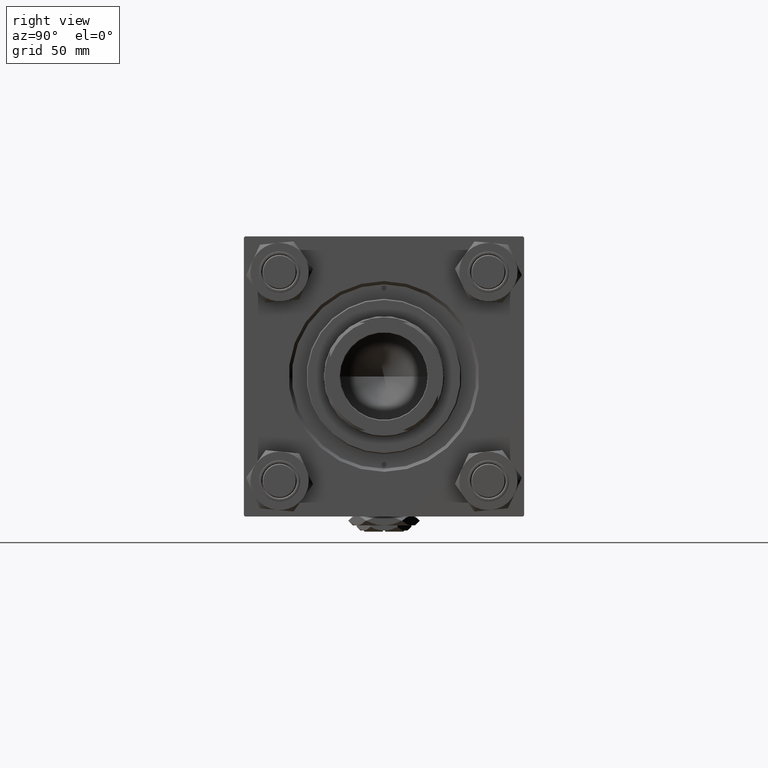
[diagram: clean part render]
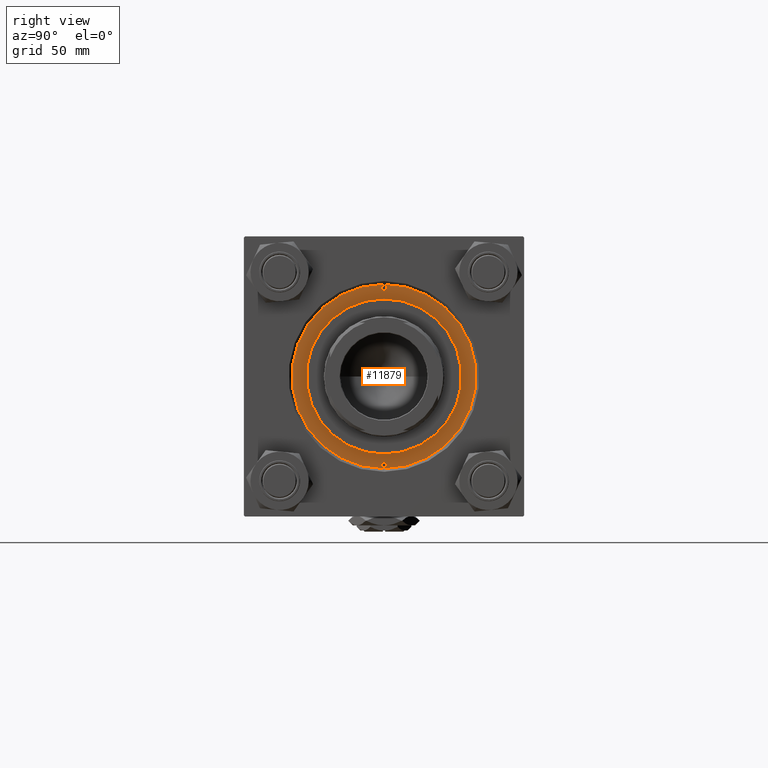
[diagram: same view with one face highlighted and labeled with its STEP entity id]
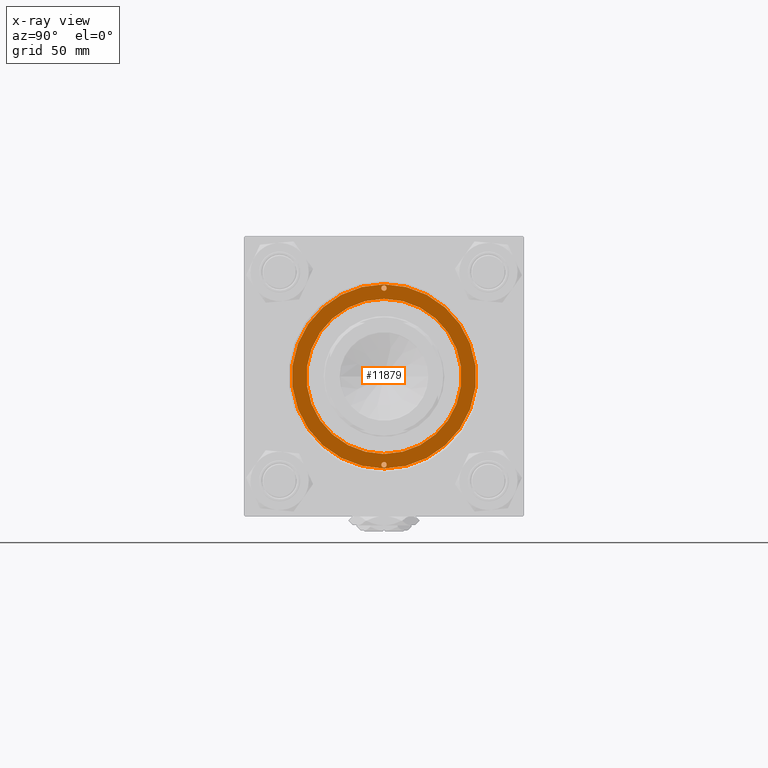
[diagram: x-ray of the same camera — body ghosted, the highlighted face saturated]
A machine part, right view. The second image highlights one B-rep face of the part: STEP entity #11879.
The next image is the same camera in x-ray: the body ghosted, the highlighted face saturated — about 0% of this face is hidden behind the body in this view.
In plain terms, the highlighted planar face has unit normal (1, 0, -0).
Its self-contained STEP definition (entity closure, byte-faithful):
#999 = DIRECTION ( 'NONE',  ( 0.000000000000000000, 0.000000000000000000, 1.000000000000000000 ) ) ;
#1621 = AXIS2_PLACEMENT_3D ( 'NONE', #3174, #3431, #19362 ) ;
#1985 = ORIENTED_EDGE ( 'NONE', *, *, #28020, .F. ) ;
#2402 = EDGE_LOOP ( 'NONE', ( #30531, #45812 ) ) ;
#2430 = DIRECTION ( 'NONE',  ( 1.000000000000000000, 0.000000000000000000, 0.000000000000000000 ) ) ;
#3174 = CARTESIAN_POINT ( 'NONE',  ( 0.000000000000000000, 0.000000000000000000, 28.69999999999999929 ) ) ;
#3431 = DIRECTION ( 'NONE',  ( 0.000000000000000000, 0.000000000000000000, 1.000000000000000000 ) ) ;
#5422 = CARTESIAN_POINT ( 'NONE',  ( -41.00000000000000000, 0.000000000000000000, 28.69999999999999929 ) ) ;
#6907 = PLANE ( 'NONE',  #25904 ) ;
#7537 = AXIS2_PLACEMENT_3D ( 'NONE', #5422, #29825, #42551 ) ;
#7699 = FACE_BOUND ( 'NONE', #18189, .T. ) ;
#7725 = CARTESIAN_POINT ( 'NONE',  ( 36.00000000000000000, 4.408728476930470856E-15, 28.69999999999999929 ) ) ;
#7811 = AXIS2_PLACEMENT_3D ( 'NONE', #37823, #9688, #18173 ) ;
#8163 = EDGE_CURVE ( 'NONE', #47077, #36294, #14019, .T. ) ;
#9688 = DIRECTION ( 'NONE',  ( 0.000000000000000000, 0.000000000000000000, 1.000000000000000000 ) ) ;
#10052 = ORIENTED_EDGE ( 'NONE', *, *, #39836, .F. ) ;
#11419 = CARTESIAN_POINT ( 'NONE',  ( 0.000000000000000000, 0.000000000000000000, 28.69999999999999929 ) ) ;
#11445 = CARTESIAN_POINT ( 'NONE',  ( -42.75000000000000000, 0.000000000000000000, 28.69999999999999929 ) ) ;
#11879 = ADVANCED_FACE ( 'NONE', ( #14873, #47779, #7699, #36097 ), #6907, .T. ) ;
#12672 = DIRECTION ( 'NONE',  ( 0.000000000000000000, 0.000000000000000000, 1.000000000000000000 ) ) ;
#13169 = CARTESIAN_POINT ( 'NONE',  ( 42.75000000000000000, 5.235365066354935472E-15, 28.69999999999999929 ) ) ;
#13632 = AXIS2_PLACEMENT_3D ( 'NONE', #32570, #12672, #28852 ) ;
#13738 = VERTEX_POINT ( 'NONE', #38542 ) ;
#14019 = CIRCLE ( 'NONE', #43679, 42.75000000000000000 ) ;
#14873 = FACE_BOUND ( 'NONE', #21250, .T. ) ;
#16157 = EDGE_CURVE ( 'NONE', #19624, #27439, #21813, .T. ) ;
#16604 = DIRECTION ( 'NONE',  ( 0.000000000000000000, 0.000000000000000000, 1.000000000000000000 ) ) ;
#17020 = CARTESIAN_POINT ( 'NONE',  ( 39.75000000000000000, 1.530808498934193050E-16, 28.69999999999999929 ) ) ;
#18173 = DIRECTION ( 'NONE',  ( 1.000000000000000000, 0.000000000000000000, 0.000000000000000000 ) ) ;
#18189 = EDGE_LOOP ( 'NONE', ( #37271, #10052 ) ) ;
#18998 = EDGE_CURVE ( 'NONE', #13738, #51964, #25307, .T. ) ;
#19235 = ORIENTED_EDGE ( 'NONE', *, *, #36557, .F. ) ;
#19362 = DIRECTION ( 'NONE',  ( 1.000000000000000000, 0.000000000000000000, 0.000000000000000000 ) ) ;
#19624 = VERTEX_POINT ( 'NONE', #42895 ) ;
#19841 = CIRCLE ( 'NONE', #48647, 1.249999999999994227 ) ;
#20542 = EDGE_CURVE ( 'NONE', #36294, #47077, #45685, .T. ) ;
#21161 = CARTESIAN_POINT ( 'NONE',  ( 0.000000000000000000, 0.000000000000000000, 28.69999999999999929 ) ) ;
#21250 = EDGE_LOOP ( 'NONE', ( #1985, #47171 ) ) ;
#21813 = CIRCLE ( 'NONE', #42998, 36.00000000000000000 ) ;
#22199 = DIRECTION ( 'NONE',  ( 1.000000000000000000, 0.000000000000000000, 0.000000000000000000 ) ) ;
#23110 = DIRECTION ( 'NONE',  ( 0.000000000000000000, 0.000000000000000000, 1.000000000000000000 ) ) ;
#23615 = DIRECTION ( 'NONE',  ( 0.000000000000000000, 0.000000000000000000, 1.000000000000000000 ) ) ;
#25307 = CIRCLE ( 'NONE', #7537, 1.249999999999994227 ) ;
#25840 = EDGE_CURVE ( 'NONE', #36790, #31429, #45848, .T. ) ;
#25904 = AXIS2_PLACEMENT_3D ( 'NONE', #11419, #23615, #40064 ) ;
#27439 = VERTEX_POINT ( 'NONE', #7725 ) ;
#27567 = AXIS2_PLACEMENT_3D ( 'NONE', #32452, #45192, #29265 ) ;
#28020 = EDGE_CURVE ( 'NONE', #51964, #13738, #32347, .T. ) ;
#28220 = CARTESIAN_POINT ( 'NONE',  ( 42.24999999999999289, 0.000000000000000000, 28.69999999999999929 ) ) ;
#28852 = DIRECTION ( 'NONE',  ( 1.000000000000000000, 0.000000000000000000, 0.000000000000000000 ) ) ;
#29265 = DIRECTION ( 'NONE',  ( 1.000000000000000000, 0.000000000000000000, 0.000000000000000000 ) ) ;
#29655 = ORIENTED_EDGE ( 'NONE', *, *, #25840, .F. ) ;
#29825 = DIRECTION ( 'NONE',  ( 0.000000000000000000, 0.000000000000000000, 1.000000000000000000 ) ) ;
#30531 = ORIENTED_EDGE ( 'NONE', *, *, #20542, .T. ) ;
#31429 = VERTEX_POINT ( 'NONE', #17020 ) ;
#32347 = CIRCLE ( 'NONE', #7811, 1.249999999999994227 ) ;
#32452 = CARTESIAN_POINT ( 'NONE',  ( 0.000000000000000000, 0.000000000000000000, 28.69999999999999929 ) ) ;
#32522 = CARTESIAN_POINT ( 'NONE',  ( 41.00000000000000000, 0.000000000000000000, 28.69999999999999929 ) ) ;
#32570 = CARTESIAN_POINT ( 'NONE',  ( 41.00000000000000000, 0.000000000000000000, 28.69999999999999929 ) ) ;
#34241 = CARTESIAN_POINT ( 'NONE',  ( -39.75000000000000711, 0.000000000000000000, 28.69999999999999929 ) ) ;
#35072 = CARTESIAN_POINT ( 'NONE',  ( 0.000000000000000000, 0.000000000000000000, 28.69999999999999929 ) ) ;
#36097 = FACE_OUTER_BOUND ( 'NONE', #2402, .T. ) ;
#36294 = VERTEX_POINT ( 'NONE', #11445 ) ;
#36557 = EDGE_CURVE ( 'NONE', #31429, #36790, #19841, .T. ) ;
#36790 = VERTEX_POINT ( 'NONE', #28220 ) ;
#37271 = ORIENTED_EDGE ( 'NONE', *, *, #16157, .F. ) ;
#37823 = CARTESIAN_POINT ( 'NONE',  ( -41.00000000000000000, 0.000000000000000000, 28.69999999999999929 ) ) ;
#38542 = CARTESIAN_POINT ( 'NONE',  ( -42.25000000000000000, 1.530808498934193050E-16, 28.69999999999999929 ) ) ;
#39836 = EDGE_CURVE ( 'NONE', #27439, #19624, #47087, .T. ) ;
#40064 = DIRECTION ( 'NONE',  ( 1.000000000000000000, 0.000000000000000000, -0.000000000000000000 ) ) ;
#42551 = DIRECTION ( 'NONE',  ( 1.000000000000000000, 0.000000000000000000, 0.000000000000000000 ) ) ;
#42895 = CARTESIAN_POINT ( 'NONE',  ( -36.00000000000000000, 0.000000000000000000, 28.69999999999999929 ) ) ;
#42998 = AXIS2_PLACEMENT_3D ( 'NONE', #21161, #999, #22199 ) ;
#43679 = AXIS2_PLACEMENT_3D ( 'NONE', #35072, #23110, #2430 ) ;
#45192 = DIRECTION ( 'NONE',  ( 0.000000000000000000, 0.000000000000000000, 1.000000000000000000 ) ) ;
#45685 = CIRCLE ( 'NONE', #1621, 42.75000000000000000 ) ;
#45812 = ORIENTED_EDGE ( 'NONE', *, *, #8163, .T. ) ;
#45848 = CIRCLE ( 'NONE', #13632, 1.249999999999994227 ) ;
#47077 = VERTEX_POINT ( 'NONE', #13169 ) ;
#47087 = CIRCLE ( 'NONE', #27567, 36.00000000000000000 ) ;
#47171 = ORIENTED_EDGE ( 'NONE', *, *, #18998, .F. ) ;
#47779 = FACE_BOUND ( 'NONE', #47832, .T. ) ;
#47832 = EDGE_LOOP ( 'NONE', ( #29655, #19235 ) ) ;
#48647 = AXIS2_PLACEMENT_3D ( 'NONE', #32522, #16604, #48729 ) ;
#48729 = DIRECTION ( 'NONE',  ( 1.000000000000000000, 0.000000000000000000, 0.000000000000000000 ) ) ;
#51964 = VERTEX_POINT ( 'NONE', #34241 ) ;